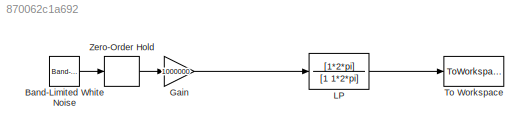
MODEL slx_870062c1a692
KIND model
CONFIG AbsTol = auto
CONFIG FixedStep = 1/mpu_sampling_frequency
CONFIG MaxStep = auto
CONFIG MinStep = auto
CONFIG RelTol = 1e-3
CONFIG SampleTimeConstraint = Unconstrained
CONFIG Solver = FixedStepAuto
CONFIG SolverMode = Auto
CONFIG SolverName = FixedStepAuto
CONFIG StartTime = 0.0
CONFIG StopTime = 60
BLOCK [Reference] Band-Limited White Noise  REF=simulink/Sources/Band-Limited
White Noise
  Ports = [0, 1]
  SourceBlock = simulink/Sources/Band-Limited\nWhite Noise
  SourceType = Band-Limited White Noise.
BLOCK [Gain] Gain
  Gain = 1000000
  OutDataTypeStr = Inherit: Inherit via internal rule
  ParamDataTypeStr = Inherit: Inherit via internal rule
  SaturateOnIntegerOverflow = off
BLOCK [TransferFcn] LP
  Denominator = [1 1*2*pi]
  Numerator = [1*2*pi]
BLOCK [ToWorkspace] To Workspace
  FixptAsFi = on
  MaxDataPoints = inf
  Ports = [1]
  SampleTime = -1
  Save2DSignal = 3-D array (concatenate along third dimension)
  VariableName = vib
BLOCK [ZeroOrderHold] Zero-Order Hold
  SampleTime = 1/mpu_sampling_frequency
LINE Band-Limited White Noise:1 -> Zero-Order Hold:1
LINE Gain:1 -> LP:1
LINE LP:1 -> To Workspace:1
LINE Zero-Order Hold:1 -> Gain:1
